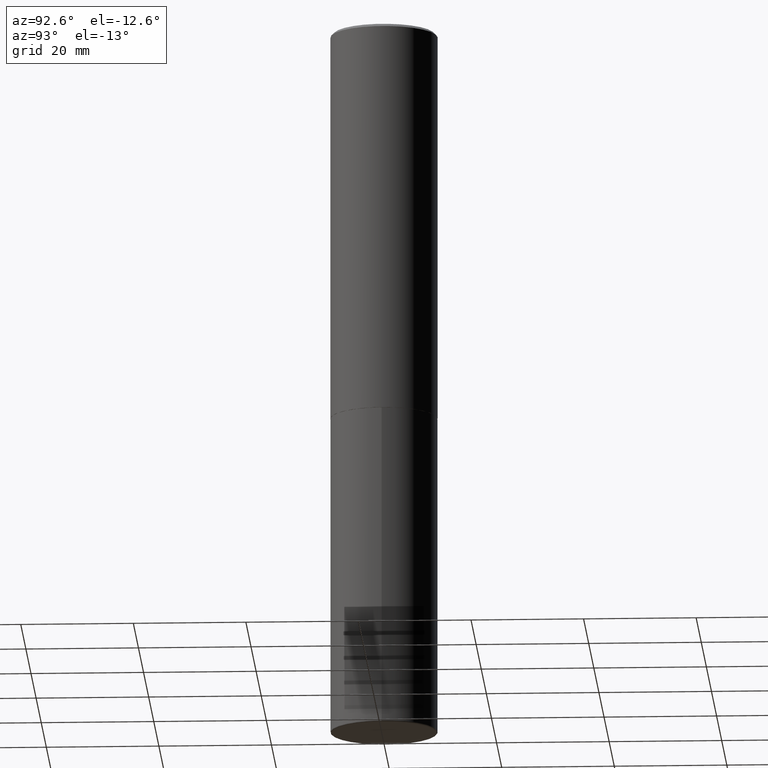
[diagram: clean part render]
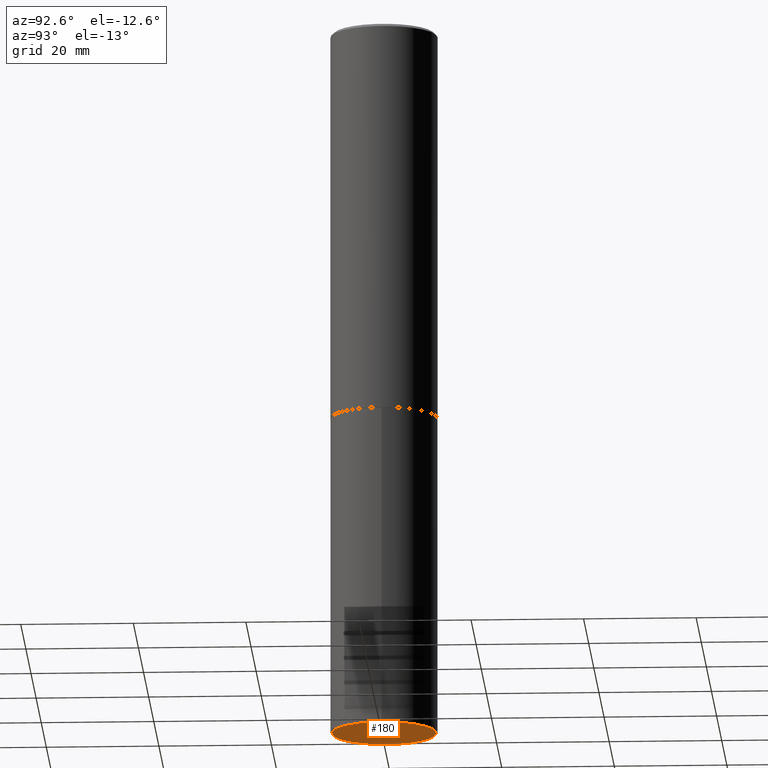
[diagram: same view with one face highlighted and labeled with its STEP entity id]
A machine part, auxiliary view. The second image highlights one B-rep face of the part: STEP entity #180.
In plain terms, the highlighted planar face has unit normal (0, -0, -1).
Its self-contained STEP definition (entity closure, byte-faithful):
#2 = EDGE_LOOP ( 'NONE', ( #325, #19 ) ) ;
#9 = DIRECTION ( 'NONE',  ( -2.445468806185136597E-29, 3.491481338843145583E-15, 1.000000000000000000 ) ) ;
#19 = ORIENTED_EDGE ( 'NONE', *, *, #271, .F. ) ;
#26 = VERTEX_POINT ( 'NONE', #145 ) ;
#36 = EDGE_CURVE ( 'NONE', #26, #192, #95, .T. ) ;
#64 = DIRECTION ( 'NONE',  ( 2.438088387897960049E-29, -3.491481338843145188E-15, -1.000000000000000000 ) ) ;
#74 = PLANE ( 'NONE',  #212 ) ;
#95 = CIRCLE ( 'NONE', #391, 0.3650000000000000466 ) ;
#97 = CARTESIAN_POINT ( 'NONE',  ( 1.222734403092568523E-28, -1.745740669421573304E-14, -5.000000000000000888 ) ) ;
#106 = DIRECTION ( 'NONE',  ( -1.000000000000000000, 6.982962677686265922E-15, -4.876176775795935793E-29 ) ) ;
#145 = CARTESIAN_POINT ( 'NONE',  ( 0.3650000000000000466, -2.000618807157122291E-14, -5.000000000000000888 ) ) ;
#180 = ADVANCED_FACE ( 'NONE', ( #224 ), #74, .T. ) ;
#192 = VERTEX_POINT ( 'NONE', #262 ) ;
#212 = AXIS2_PLACEMENT_3D ( 'NONE', #225, #64, #106 ) ;
#224 = FACE_OUTER_BOUND ( 'NONE', #2, .T. ) ;
#225 = CARTESIAN_POINT ( 'NONE',  ( 1.774526178394363037E-29, -3.242643679648566706E-14, -5.000000000000000000 ) ) ;
#245 = DIRECTION ( 'NONE',  ( 1.000000000000000000, -6.982962677686270655E-15, 0.000000000000000000 ) ) ;
#262 = CARTESIAN_POINT ( 'NONE',  ( -0.3650000000000000466, -1.481094116520914498E-14, -5.000000000000000888 ) ) ;
#268 = AXIS2_PLACEMENT_3D ( 'NONE', #97, #9, #338 ) ;
#271 = EDGE_CURVE ( 'NONE', #192, #26, #342, .T. ) ;
#281 = CARTESIAN_POINT ( 'NONE',  ( 1.222734403092568523E-28, -1.745740669421573304E-14, -5.000000000000000888 ) ) ;
#325 = ORIENTED_EDGE ( 'NONE', *, *, #36, .F. ) ;
#338 = DIRECTION ( 'NONE',  ( 1.000000000000000000, -6.982962677686270655E-15, 0.000000000000000000 ) ) ;
#342 = CIRCLE ( 'NONE', #268, 0.3650000000000000466 ) ;
#370 = DIRECTION ( 'NONE',  ( -2.445468806185136597E-29, 3.491481338843145583E-15, 1.000000000000000000 ) ) ;
#391 = AXIS2_PLACEMENT_3D ( 'NONE', #281, #370, #245 ) ;